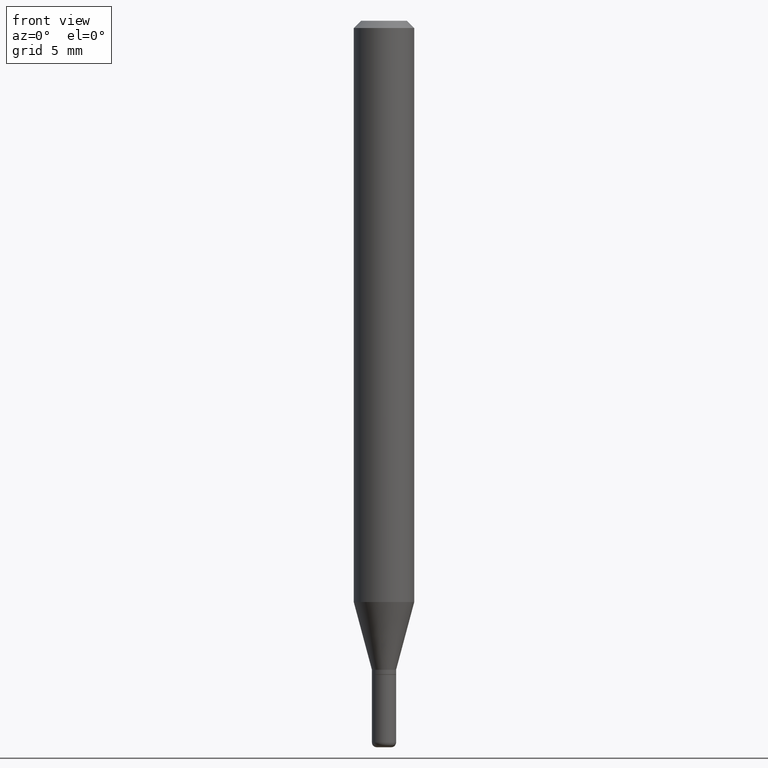
[diagram: clean part render]
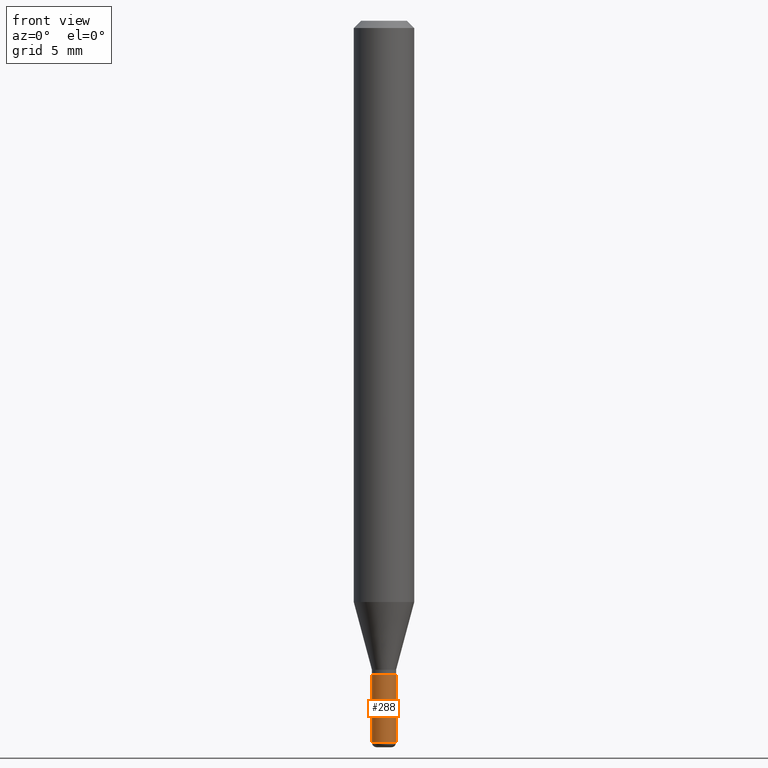
[diagram: same view with one face highlighted and labeled with its STEP entity id]
A machine part, front view. The second image highlights one B-rep face of the part: STEP entity #288.
In plain terms, the highlighted cylindrical surface (edge-blend (fillet) strip) has radius 0.635 mm, axis along (-0, 0, 1).
Its self-contained STEP definition (entity closure, byte-faithful):
#3 = CARTESIAN_POINT ( 'NONE',  ( 0.000000000000000000, 0.000000000000000000, 0.000000000000000000 ) ) ;
#12 = AXIS2_PLACEMENT_3D ( 'NONE', #334, #212, #215 ) ;
#15 = CARTESIAN_POINT ( 'NONE',  ( -0.02500000000000000139, -4.780267817217242146E-15, -1.350000000000000089 ) ) ;
#45 = AXIS2_PLACEMENT_3D ( 'NONE', #3, #71, #186 ) ;
#70 = VERTEX_POINT ( 'NONE', #502 ) ;
#71 = DIRECTION ( 'NONE',  ( -2.445468806185136597E-29, 3.491481338843145583E-15, 1.000000000000000000 ) ) ;
#99 = DIRECTION ( 'NONE',  ( -2.445468806185136877E-29, 3.491481338843145188E-15, 1.000000000000000000 ) ) ;
#104 = CYLINDRICAL_SURFACE ( 'NONE', #45, 0.02499999999999997363 ) ;
#116 = EDGE_CURVE ( 'NONE', #70, #435, #166, .T. ) ;
#124 = EDGE_CURVE ( 'NONE', #435, #444, #461, .T. ) ;
#166 = CIRCLE ( 'NONE', #12, 0.02499999999999994588 ) ;
#177 = DIRECTION ( 'NONE',  ( 1.000000000000000000, -6.982962677686254878E-15, 0.000000000000000000 ) ) ;
#186 = DIRECTION ( 'NONE',  ( 1.000000000000000000, -6.982962677686265922E-15, 4.876176775795935232E-29 ) ) ;
#188 = LINE ( 'NONE', #219, #241 ) ;
#212 = DIRECTION ( 'NONE',  ( -2.445468806185136597E-29, 3.491481338843145583E-15, 1.000000000000000000 ) ) ;
#215 = DIRECTION ( 'NONE',  ( 1.000000000000000000, -6.982962677686269866E-15, 0.000000000000000000 ) ) ;
#219 = CARTESIAN_POINT ( 'NONE',  ( -0.02499999999999997363, 1.776356839400248591E-16, -1.229733772563725079E-30 ) ) ;
#241 = VECTOR ( 'NONE', #348, 39.37007874015748143 ) ;
#245 = CARTESIAN_POINT ( 'NONE',  ( 0.02499999999999997363, -1.745740669421564705E-16, 1.219044193948982547E-30 ) ) ;
#285 = CARTESIAN_POINT ( 'NONE',  ( 3.301382888349935078E-29, -4.713499807438246596E-15, -1.350000000000000089 ) ) ;
#288 = ADVANCED_FACE ( 'NONE', ( #443 ), #104, .T. ) ;
#289 = CARTESIAN_POINT ( 'NONE',  ( 0.02499999999999994588, -5.376881261818443984E-15, -1.490000000000000213 ) ) ;
#293 = DIRECTION ( 'NONE',  ( -2.445468806185136597E-29, 3.491481338843145583E-15, 1.000000000000000000 ) ) ;
#301 = EDGE_CURVE ( 'NONE', #70, #432, #188, .T. ) ;
#325 = ORIENTED_EDGE ( 'NONE', *, *, #116, .T. ) ;
#332 = VECTOR ( 'NONE', #99, 39.37007874015748143 ) ;
#334 = CARTESIAN_POINT ( 'NONE',  ( 3.643748521215853910E-29, -5.202307194876288105E-15, -1.490000000000000213 ) ) ;
#340 = CARTESIAN_POINT ( 'NONE',  ( 0.02500000000000000139, -4.888073874380403263E-15, -1.350000000000000089 ) ) ;
#348 = DIRECTION ( 'NONE',  ( -2.445468806185136877E-29, 3.491481338843145188E-15, 1.000000000000000000 ) ) ;
#368 = ORIENTED_EDGE ( 'NONE', *, *, #124, .T. ) ;
#379 = EDGE_CURVE ( 'NONE', #432, #444, #516, .T. ) ;
#392 = ORIENTED_EDGE ( 'NONE', *, *, #379, .F. ) ;
#402 = EDGE_LOOP ( 'NONE', ( #447, #325, #368, #392 ) ) ;
#432 = VERTEX_POINT ( 'NONE', #15 ) ;
#435 = VERTEX_POINT ( 'NONE', #289 ) ;
#443 = FACE_OUTER_BOUND ( 'NONE', #402, .T. ) ;
#444 = VERTEX_POINT ( 'NONE', #340 ) ;
#447 = ORIENTED_EDGE ( 'NONE', *, *, #301, .F. ) ;
#450 = AXIS2_PLACEMENT_3D ( 'NONE', #285, #293, #177 ) ;
#461 = LINE ( 'NONE', #245, #332 ) ;
#502 = CARTESIAN_POINT ( 'NONE',  ( -0.02499999999999994588, -4.780267817217242146E-15, -1.490000000000000213 ) ) ;
#516 = CIRCLE ( 'NONE', #450, 0.02500000000000000139 ) ;